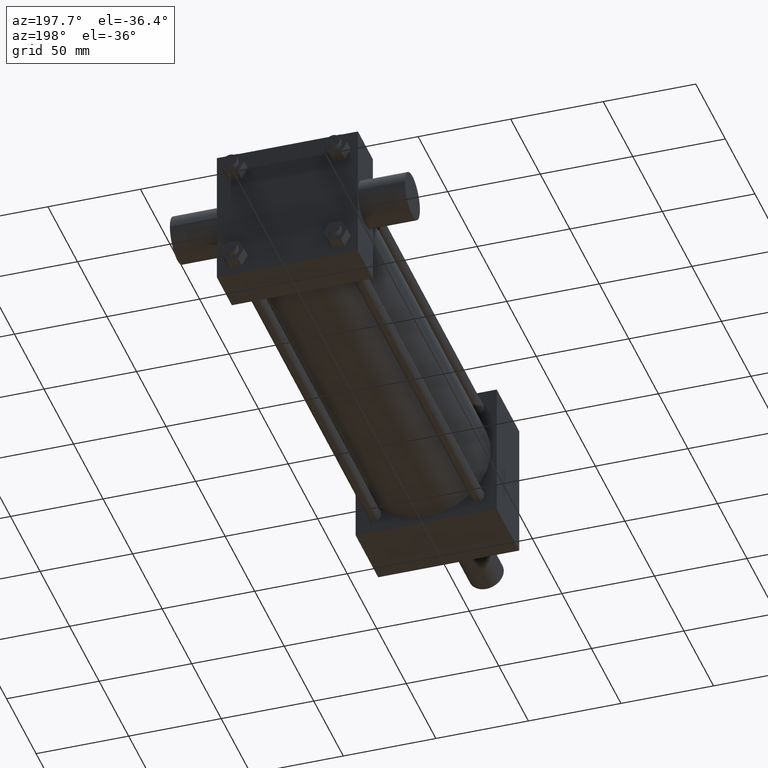
[diagram: clean part render]
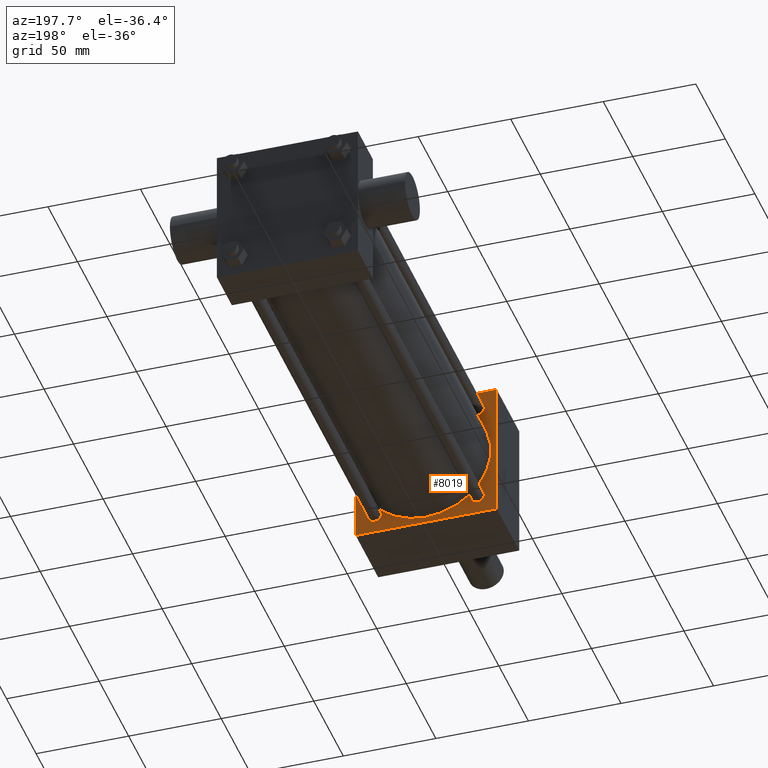
[diagram: same view with one face highlighted and labeled with its STEP entity id]
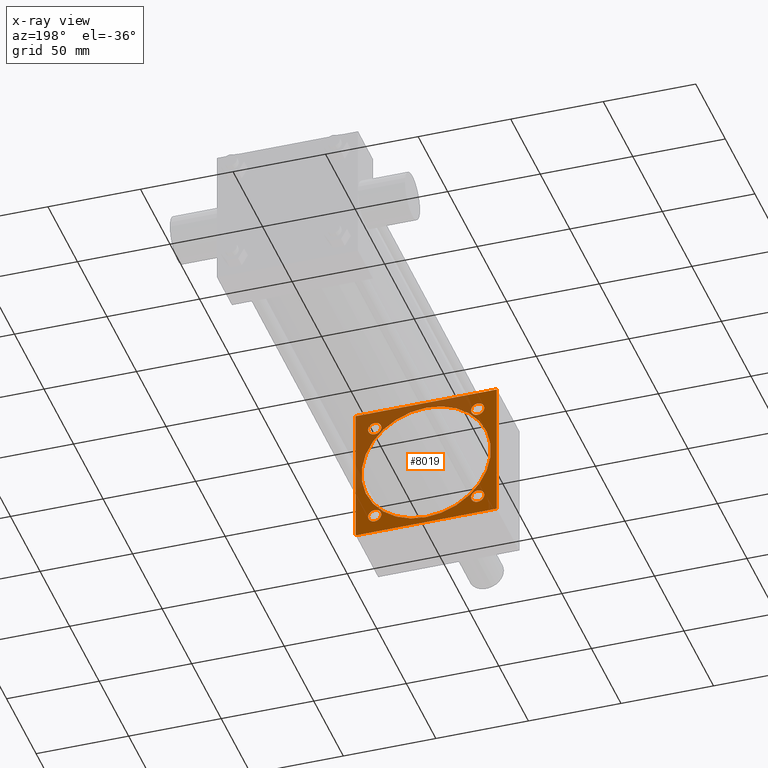
[diagram: x-ray of the same camera — body ghosted, the highlighted face saturated]
A machine part, auxiliary view. The second image highlights one B-rep face of the part: STEP entity #8019.
The next image is the same camera in x-ray: the body ghosted, the highlighted face saturated — about 35% of this face is hidden behind the body in this view.
In plain terms, the highlighted planar face has unit normal (0, -1, 0).
Its self-contained STEP definition (entity closure, byte-faithful):
#498=FACE_OUTER_BOUND('',#504,.T.);
#499=FACE_BOUND('',#505,.T.);
#500=FACE_BOUND('',#506,.T.);
#501=FACE_BOUND('',#507,.T.);
#502=FACE_BOUND('',#508,.T.);
#503=FACE_BOUND('',#509,.T.);
#504=EDGE_LOOP('',(#510));
#505=EDGE_LOOP('',(#519));
#506=EDGE_LOOP('',(#528));
#507=EDGE_LOOP('',(#537,#538,#539,#540));
#508=EDGE_LOOP('',(#569));
#509=EDGE_LOOP('',(#578));
#510=ORIENTED_EDGE('',*,*,#511,.T.);
#511=EDGE_CURVE('',#517,#517,#512,.T.);
#512=CIRCLE('',#513,3.568700000E+000);
#513=AXIS2_PLACEMENT_3D('',#514,#515,#516);
#514=CARTESIAN_POINT('',(2.781300000E+001,7.302500000E+001,2.781300000E+001));
#515=DIRECTION('',(0.0E+000,-1.0E+000,0.0E+000));
#516=DIRECTION('',(0.0E+000,0.0E+000,-1.0E+000));
#517=VERTEX_POINT('',#518);
#518=CARTESIAN_POINT('',(2.781300000E+001,7.302500000E+001,2.424430000E+001));
#519=ORIENTED_EDGE('',*,*,#520,.T.);
#520=EDGE_CURVE('',#526,#526,#521,.T.);
#521=CIRCLE('',#522,3.568700000E+000);
#522=AXIS2_PLACEMENT_3D('',#523,#524,#525);
#523=CARTESIAN_POINT('',(2.781300000E+001,7.302500000E+001,-2.781300000E+001));
#524=DIRECTION('',(0.0E+000,-1.0E+000,0.0E+000));
#525=DIRECTION('',(0.0E+000,0.0E+000,-1.0E+000));
#526=VERTEX_POINT('',#527);
#527=CARTESIAN_POINT('',(2.781300000E+001,7.302500000E+001,-3.138170000E+001));
#528=ORIENTED_EDGE('',*,*,#529,.F.);
#529=EDGE_CURVE('',#535,#535,#530,.T.);
#530=CIRCLE('',#531,3.568700000E+000);
#531=AXIS2_PLACEMENT_3D('',#532,#533,#534);
#532=CARTESIAN_POINT('',(-2.781300000E+001,7.302500000E+001,-2.781300000E+001));
#533=DIRECTION('',(0.0E+000,1.0E+000,0.0E+000));
#534=DIRECTION('',(1.0E+000,0.0E+000,0.0E+000));
#535=VERTEX_POINT('',#536);
#536=CARTESIAN_POINT('',(-2.424430000E+001,7.302500000E+001,-2.781300000E+001));
#537=ORIENTED_EDGE('',*,*,#541,.F.);
#538=ORIENTED_EDGE('',*,*,#550,.F.);
#539=ORIENTED_EDGE('',*,*,#557,.F.);
#540=ORIENTED_EDGE('',*,*,#564,.F.);
#541=EDGE_CURVE('',#546,#547,#542,.T.);
#542=LINE('',#543,#544);
#543=CARTESIAN_POINT('',(-3.810000000E+001,7.302500000E+001,-3.810000000E+001));
#544=VECTOR('',#545,1.0E+000);
#545=DIRECTION('',(1.0E+000,0.0E+000,0.0E+000));
#546=VERTEX_POINT('',#548);
#547=VERTEX_POINT('',#549);
#548=CARTESIAN_POINT('',(-3.810000000E+001,7.302500000E+001,-3.810000000E+001));
#549=CARTESIAN_POINT('',(3.810000000E+001,7.302500000E+001,-3.810000000E+001));
#550=EDGE_CURVE('',#555,#546,#551,.T.);
#551=LINE('',#552,#553);
#552=CARTESIAN_POINT('',(-3.810000000E+001,7.302500000E+001,3.810000000E+001));
#553=VECTOR('',#554,1.0E+000);
#554=DIRECTION('',(0.0E+000,0.0E+000,-1.0E+000));
#555=VERTEX_POINT('',#556);
#556=CARTESIAN_POINT('',(-3.810000000E+001,7.302500000E+001,3.810000000E+001));
#557=EDGE_CURVE('',#562,#555,#558,.T.);
#558=LINE('',#559,#560);
#559=CARTESIAN_POINT('',(3.810000000E+001,7.302500000E+001,3.810000000E+001));
#560=VECTOR('',#561,1.0E+000);
#561=DIRECTION('',(-1.0E+000,0.0E+000,0.0E+000));
#562=VERTEX_POINT('',#563);
#563=CARTESIAN_POINT('',(3.810000000E+001,7.302500000E+001,3.810000000E+001));
#564=EDGE_CURVE('',#547,#562,#565,.T.);
#565=LINE('',#566,#567);
#566=CARTESIAN_POINT('',(3.810000000E+001,7.302500000E+001,-3.810000000E+001));
#567=VECTOR('',#568,1.0E+000);
#568=DIRECTION('',(0.0E+000,0.0E+000,1.0E+000));
#569=ORIENTED_EDGE('',*,*,#570,.T.);
#570=EDGE_CURVE('',#576,#576,#571,.T.);
#571=CIRCLE('',#572,3.568700000E+000);
#572=AXIS2_PLACEMENT_3D('',#573,#574,#575);
#573=CARTESIAN_POINT('',(-2.781300000E+001,7.302500000E+001,2.781300000E+001));
#574=DIRECTION('',(0.0E+000,-1.0E+000,0.0E+000));
#575=DIRECTION('',(0.0E+000,0.0E+000,-1.0E+000));
#576=VERTEX_POINT('',#577);
#577=CARTESIAN_POINT('',(-2.781300000E+001,7.302500000E+001,2.424430000E+001));
#578=ORIENTED_EDGE('',*,*,#579,.T.);
#579=EDGE_CURVE('',#585,#585,#580,.T.);
#580=CIRCLE('',#581,3.492500000E+001);
#581=AXIS2_PLACEMENT_3D('',#582,#583,#584);
#582=CARTESIAN_POINT('',(0.000000000E+000,7.302500000E+001,0.000000000E+000));
#583=DIRECTION('',(0.0E+000,-1.0E+000,0.0E+000));
#584=DIRECTION('',(0.0E+000,0.0E+000,-1.0E+000));
#585=VERTEX_POINT('',#586);
#586=CARTESIAN_POINT('',(0.000000000E+000,7.302500000E+001,-3.492500000E+001));
#587=PLANE('',#588);
#588=AXIS2_PLACEMENT_3D('',#589,#590,#591);
#589=CARTESIAN_POINT('',(3.810000000E+001,7.302500000E+001,-3.810000000E+001));
#590=DIRECTION('',(0.0E+000,-1.0E+000,0.0E+000));
#591=DIRECTION('',(0.0E+000,0.0E+000,-1.0E+000));
#8019=ADVANCED_FACE('',(#498,#499,#500,#501,#502,#503),#587,.F.);